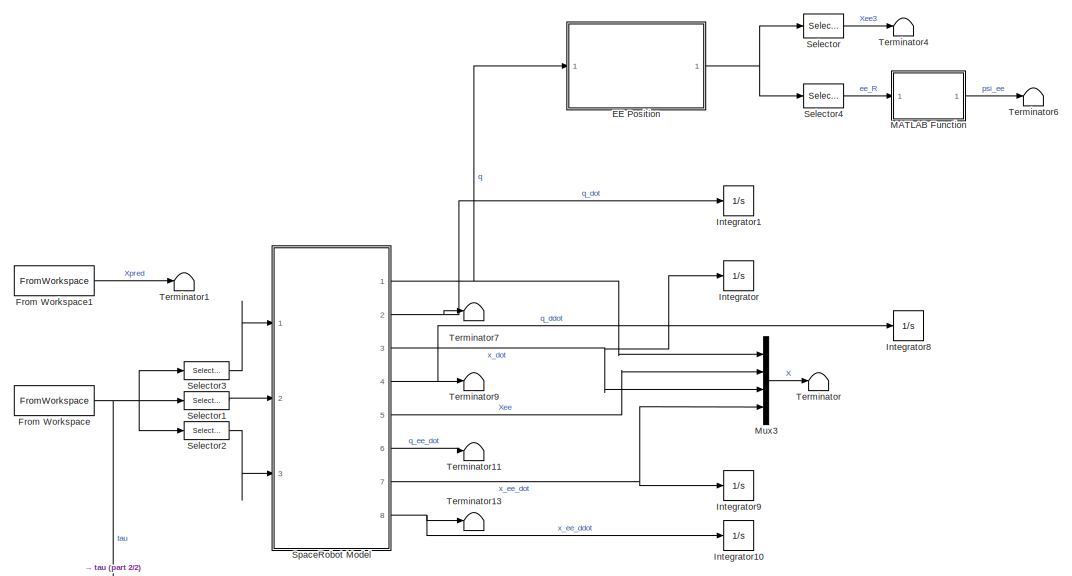
[diagram: root canvas - part 1/2, full width, top band]
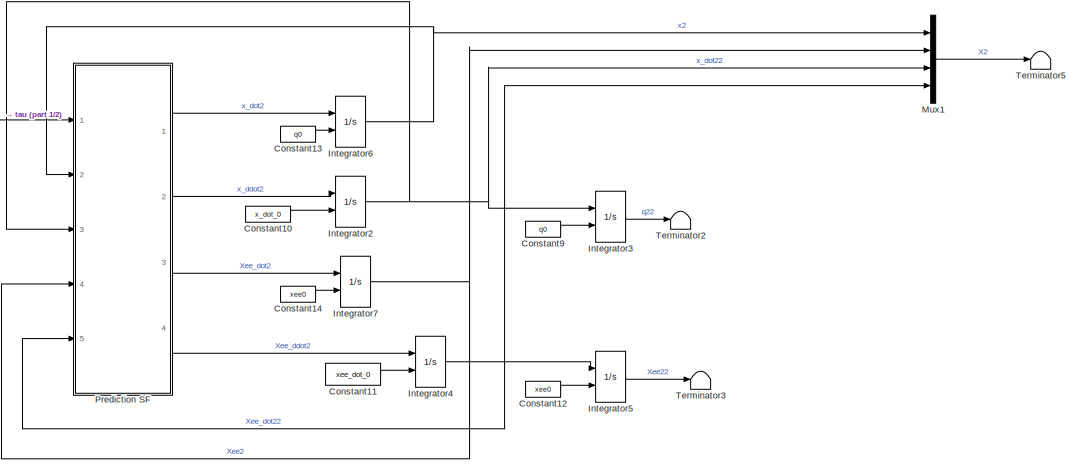
[diagram: root canvas - part 2/2, full width, bottom band]
MODEL slx_b6492d715227
KIND model
CONFIG AbsTol = auto
CONFIG EnableMultiTasking = off
CONFIG FixedStep = 0.01
CONFIG MaxStep = auto
CONFIG MinStep = auto
CONFIG RelTol = 1e-3
CONFIG SampleTimeConstraint = Unconstrained
CONFIG SolverName = FixedStepAuto
CONFIG StartTime = 0.0
CONFIG StopTime = 1.5
BLOCK [Constant] Constant10
  Value = x_dot_0
BLOCK [Constant] Constant11
  Value = xee_dot_0
BLOCK [Constant] Constant12
  Value = xee0
BLOCK [Constant] Constant13
  Value = q0
BLOCK [Constant] Constant14
  Value = xee0
BLOCK [Constant] Constant9
  Value = q0
BLOCK [SubSystem] EE Position
  Ports = [1, 1]
  ReferencedSubsystem = GetTransform
  RequestExecContextInheritance = off
  SimulateUsing = Interpreted execution
  sourceBody = endeffector
  spaceRobot = sr
  targetBody = inertial
BLOCK [FromWorkspace] From Workspace
  VariableName = mvTT
BLOCK [FromWorkspace] From Workspace1
  VariableName = xTT
BLOCK [Integrator] Integrator
  InitialCondition = q0
  Ports = [1, 1]
BLOCK [Integrator] Integrator1
  InitialCondition = q0
  Ports = [1, 1]
BLOCK [Integrator] Integrator10
  InitialCondition = xee_dot_0
  Ports = [1, 1]
BLOCK [Integrator] Integrator2
  InitialConditionSource = external
  Ports = [2, 1]
BLOCK [Integrator] Integrator3
  InitialConditionSource = external
  Ports = [2, 1]
BLOCK [Integrator] Integrator4
  InitialConditionSource = external
  Ports = [2, 1]
BLOCK [Integrator] Integrator5
  InitialConditionSource = external
  Ports = [2, 1]
BLOCK [Integrator] Integrator6
  InitialConditionSource = external
  Ports = [2, 1]
BLOCK [Integrator] Integrator7
  InitialConditionSource = external
  Ports = [2, 1]
BLOCK [Integrator] Integrator8
  InitialCondition = q_dot_0
  Ports = [1, 1]
BLOCK [Integrator] Integrator9
  InitialCondition = xee0
  Ports = [1, 1]
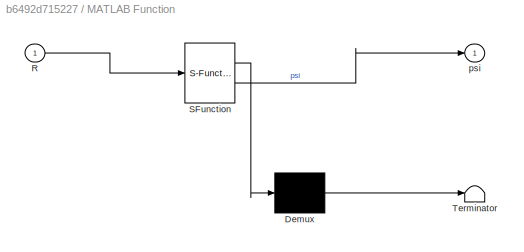
BLOCK [SubSystem] MATLAB Function
  ErrorFcn = Stateflow.Translate.translate
  PermitHierarchicalResolution = ExplicitOnly
  Ports = [1, 1]
  RequestExecContextInheritance = off
  SFBlockType = MATLAB Function
  TreatAsAtomicUnit = on
BLOCK [Demux] MATLAB Function/ Demux 
  Outputs = 1
  Ports = [1, 1]
BLOCK [S-Function] MATLAB Function/ SFunction 
  EnableBusSupport = on
  FunctionName = sf_sfun
  PortCounts = [1 2]
  Ports = [1, 2]
  SFcnIsStateOwnerBlock = off
  SFunctionDeploymentMode = off
  Tag = Stateflow S-Function 4
BLOCK [Terminator] MATLAB Function/ Terminator 
BLOCK [Inport] MATLAB Function/R
BLOCK [Outport] MATLAB Function/psi
BLOCK [Mux] Mux1
  DisplayOption = bar
  Ports = [4, 1]
BLOCK [Mux] Mux3
  DisplayOption = bar
  Ports = [4, 1]
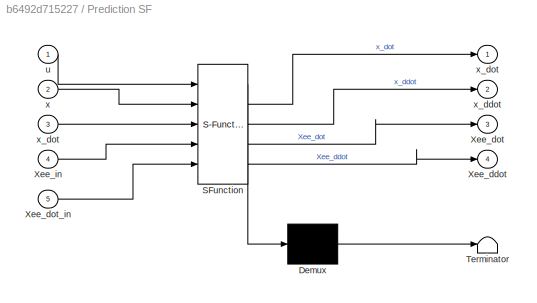
BLOCK [SubSystem] Prediction SF
  ErrorFcn = Stateflow.Translate.translate
  PermitHierarchicalResolution = ExplicitOnly
  Ports = [5, 4]
  RequestExecContextInheritance = off
  SFBlockType = MATLAB Function
  TreatAsAtomicUnit = on
BLOCK [Demux] Prediction SF/ Demux 
  Outputs = 1
  Ports = [1, 1]
BLOCK [S-Function] Prediction SF/ SFunction 
  EnableBusSupport = on
  FunctionName = sf_sfun
  PortCounts = [5 5]
  Ports = [5, 5]
  SFcnIsStateOwnerBlock = off
  SFunctionDeploymentMode = off
  Tag = Stateflow S-Function 2
BLOCK [Terminator] Prediction SF/ Terminator 
BLOCK [Outport] Prediction SF/Xee_ddot
  Port = 4
BLOCK [Outport] Prediction SF/Xee_dot
  Port = 3
BLOCK [Inport] Prediction SF/Xee_dot_in
  Port = 5
BLOCK [Inport] Prediction SF/Xee_in
  Port = 4
BLOCK [Inport] Prediction SF/u
BLOCK [Inport] Prediction SF/x
  Port = 2
BLOCK [Outport] Prediction SF/x_ddot
  Port = 2
BLOCK [Outport] Prediction SF/x_dot
BLOCK [Inport] Prediction SF/x_dot 
  Port = 3
BLOCK [Selector] Selector
  IndexOptions = Index vector (dialog),Index vector (dialog)
  Indices = [1:3],4
  InputPortWidth = [4 4]
  NumberOfDimensions = 2
  OutputSizes = 1,1
  Ports = [1, 1]
BLOCK [Selector] Selector1
  IndexOptions = Index vector (dialog)
  Indices = [4:6]
  OutputSizes = 1
  Ports = [1, 1]
BLOCK [Selector] Selector2
  IndexOptions = Index vector (dialog)
  Indices = [7:N]
  OutputSizes = 1
  Ports = [1, 1]
BLOCK [Selector] Selector3
  IndexOptions = Index vector (dialog)
  Indices = [1:3]
  OutputSizes = 1
  Ports = [1, 1]
BLOCK [Selector] Selector4
  IndexOptions = Index vector (dialog),Index vector (dialog)
  Indices = [1:3],[1:3]
  InputPortWidth = [4 4]
  NumberOfDimensions = 2
  OutputSizes = 1,1
  Ports = [1, 1]
BLOCK [SubSystem] SpaceRobot Model
  Ports = [3, 8]
  ReferencedSubsystem = SpaceRobot_Model
  RequestExecContextInheritance = off
  jointCstr = off
  q_0 = q0
  q_dot_0 = q_dot_0
  spaceRobot = sr
BLOCK [Terminator] Terminator
BLOCK [Terminator] Terminator1
BLOCK [Terminator] Terminator11
BLOCK [Terminator] Terminator13
BLOCK [Terminator] Terminator2
BLOCK [Terminator] Terminator3
BLOCK [Terminator] Terminator4
BLOCK [Terminator] Terminator5
BLOCK [Terminator] Terminator6
BLOCK [Terminator] Terminator7
BLOCK [Terminator] Terminator9
LINE Constant10:1 -> Integrator2:2
LINE Constant11:1 -> Integrator4:2
LINE Constant12:1 -> Integrator5:2
LINE Constant13:1 -> Integrator6:2
LINE Constant14:1 -> Integrator7:2
LINE Constant9:1 -> Integrator3:2
NET EE Position:1 -> Selector4:1, Selector:1
LINE From Workspace1:1 -> Terminator1:1
NET From Workspace:1 -> Prediction SF:1, Selector1:1, Selector2:1, Selector3:1
NET Integrator2:1 -> Integrator3:1, Mux1:3, Prediction SF:3
LINE Integrator3:1 -> Terminator2:1
NET Integrator4:1 -> Integrator5:1, Mux1:4, Prediction SF:5
LINE Integrator5:1 -> Terminator3:1
NET Integrator6:1 -> Mux1:1, Prediction SF:2
NET Integrator7:1 -> Mux1:2, Prediction SF:4
LINE MATLAB Function:1 -> Terminator6:1
LINE Mux1:1 -> Terminator5:1
LINE Mux3:1 -> Terminator:1
LINE Prediction SF:1 -> Integrator6:1
LINE Prediction SF:2 -> Integrator2:1
LINE Prediction SF:3 -> Integrator7:1
LINE Prediction SF:4 -> Integrator4:1
LINE Selector1:1 -> SpaceRobot Model:2
LINE Selector2:1 -> SpaceRobot Model:3
LINE Selector3:1 -> SpaceRobot Model:1
LINE Selector4:1 -> MATLAB Function:1
LINE Selector:1 -> Terminator4:1
NET SpaceRobot Model:1 -> EE Position:1, Mux3:1
NET SpaceRobot Model:2 -> Integrator1:1, Terminator7:1
NET SpaceRobot Model:3 -> Integrator:1, Mux3:3
NET SpaceRobot Model:4 -> Integrator8:1, Terminator9:1
LINE SpaceRobot Model:5 -> Mux3:2
LINE SpaceRobot Model:6 -> Terminator11:1
NET SpaceRobot Model:7 -> Integrator9:1, Mux3:4
NET SpaceRobot Model:8 -> Integrator10:1, Terminator13:1
note: NET lines group one-source signal fan-out (src -> all destinations, sorted); 1:1 wires keep LINE
CHART Prediction SF states=1 transitions=1
  STATE_LABEL 'eML_blk_kernel()'
  STATE_LABEL 'SCRIPT:\nfunction [x_dot, x_ddot, Xee_dot, Xee_ddot] = fcn(u, x, x_dot, Xee_in, Xee_dot_in)\n\n% q_dot(4:6) = omega2euler(q(4:6), q_dot(4:6));\n% Xee_dot(4:6) = omega2euler(Xee(4:6), Xee_dot(4:6));\n\nx = [x; Xee_in; x_dot; Xee_dot_in];\n\n% sr_info = SR2_info();\nsr_info = SR6_info();\n\n\nN = sr_info.N;\n\ndx = sr_ee_state_func(x, u, sr_info);\n\nx_dot = dx(1:N);\nx_ddot = dx(N+7:2*N+6);\n\nXee_dot = dx(N+1:N+6);\n...<+28ch>'
CHART MATLAB Function states=1 transitions=1
  STATE_LABEL 'eML_blk_kernel()'
  STATE_LABEL "SCRIPT:\nfunction psi = fcn(R)\n\npsi = zeros(3, 1);\ntemp = rotm2eul(R, 'ZYX');\npsi(1) = temp(3);\npsi(2) = temp(2);\npsi(3) = temp(1);\n\n"
CHART  states=0 transitions=0
CHART  states=0 transitions=0
